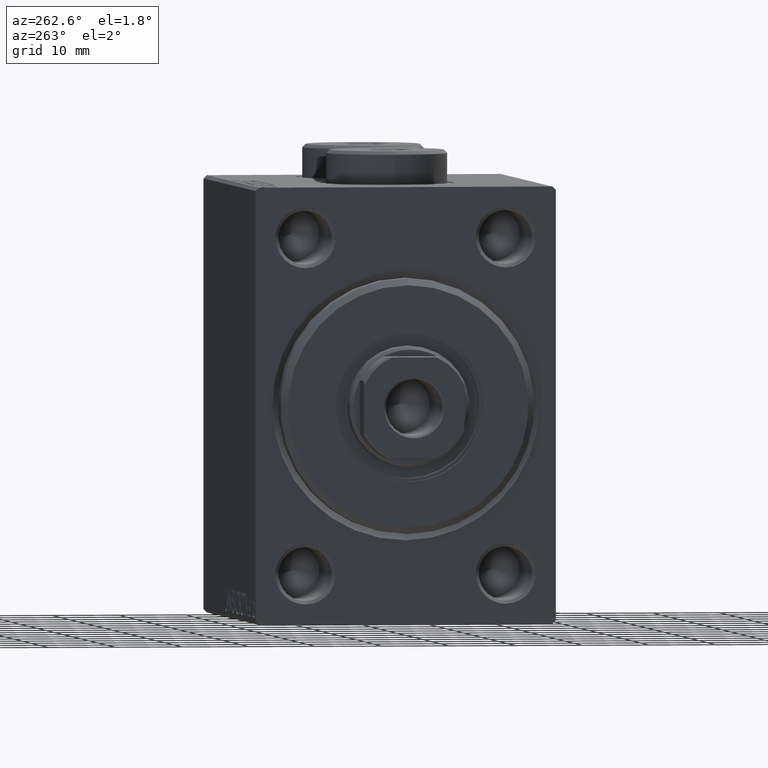
[diagram: clean part render]
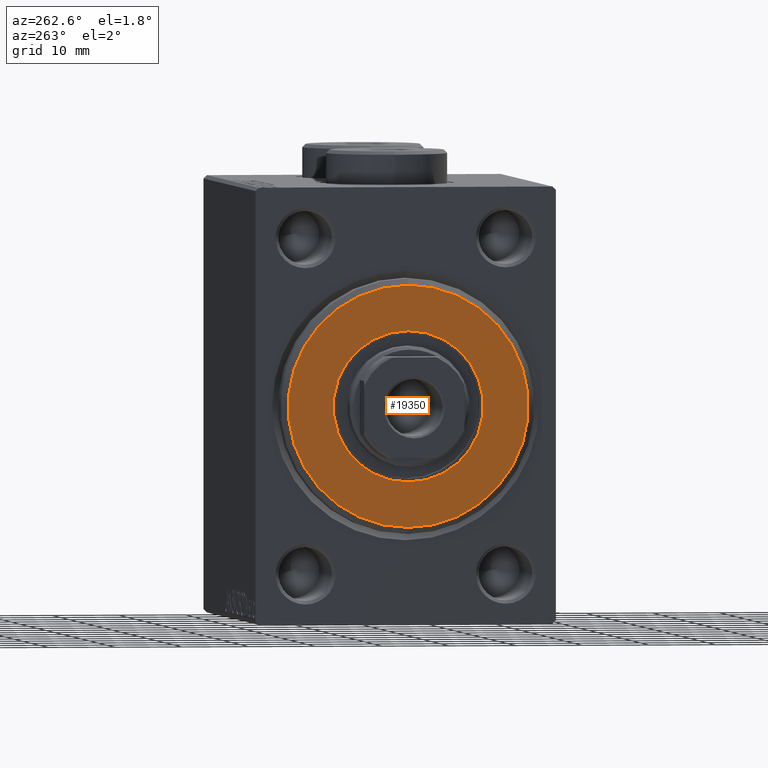
[diagram: same view with one face highlighted and labeled with its STEP entity id]
A machine part, auxiliary view. The second image highlights one B-rep face of the part: STEP entity #19350.
In plain terms, the highlighted planar face has unit normal (-1, 0, 0).
Its self-contained STEP definition (entity closure, byte-faithful):
#73 = AXIS2_PLACEMENT_3D ( 'NONE', #294, #39014, #17542 ) ;
#294 = CARTESIAN_POINT ( 'NONE',  ( 3.000000000000000000, 0.000000000000000000, 0.000000000000000000 ) ) ;
#704 = CARTESIAN_POINT ( 'NONE',  ( 3.000000000000000000, 2.265596578422602607E-15, -17.99999999999998934 ) ) ;
#973 = ORIENTED_EDGE ( 'NONE', *, *, #15301, .T. ) ;
#1362 = DIRECTION ( 'NONE',  ( 1.000000000000000000, -0.000000000000000000, 0.000000000000000000 ) ) ;
#4525 = ORIENTED_EDGE ( 'NONE', *, *, #39647, .F. ) ;
#6016 = AXIS2_PLACEMENT_3D ( 'NONE', #25990, #1362, #26900 ) ;
#6398 = DIRECTION ( 'NONE',  ( 1.000000000000000000, -0.000000000000000000, 0.000000000000000000 ) ) ;
#6550 = EDGE_CURVE ( 'NONE', #40892, #12148, #23312, .T. ) ;
#6848 = CARTESIAN_POINT ( 'NONE',  ( 3.000000000000000000, 0.000000000000000000, 0.000000000000000000 ) ) ;
#6966 = FACE_OUTER_BOUND ( 'NONE', #36984, .T. ) ;
#9868 = DIRECTION ( 'NONE',  ( 0.000000000000000000, 0.000000000000000000, -1.000000000000000000 ) ) ;
#11126 = CIRCLE ( 'NONE', #31005, 11.25000000000000178 ) ;
#12148 = VERTEX_POINT ( 'NONE', #29027 ) ;
#13314 = DIRECTION ( 'NONE',  ( 1.000000000000000000, 0.000000000000000000, 0.000000000000000000 ) ) ;
#14467 = CARTESIAN_POINT ( 'NONE',  ( 3.000000000000000000, 0.000000000000000000, 0.000000000000000000 ) ) ;
#15301 = EDGE_CURVE ( 'NONE', #37596, #43769, #30965, .T. ) ;
#17542 = DIRECTION ( 'NONE',  ( 0.000000000000000000, 0.000000000000000000, -1.000000000000000000 ) ) ;
#19350 = ADVANCED_FACE ( 'NONE', ( #6966, #39464 ), #35776, .T. ) ;
#20448 = DIRECTION ( 'NONE',  ( 0.000000000000000000, 0.000000000000000000, -1.000000000000000000 ) ) ;
#20842 = CARTESIAN_POINT ( 'NONE',  ( 3.000000000000000000, 0.000000000000000000, 17.99999999999998934 ) ) ;
#21796 = EDGE_CURVE ( 'NONE', #43769, #37596, #24430, .T. ) ;
#23312 = CIRCLE ( 'NONE', #38819, 11.25000000000000178 ) ;
#24375 = DIRECTION ( 'NONE',  ( 1.000000000000000000, 0.000000000000000000, 0.000000000000000000 ) ) ;
#24430 = CIRCLE ( 'NONE', #6016, 17.99999999999998934 ) ;
#25990 = CARTESIAN_POINT ( 'NONE',  ( 3.000000000000000000, 0.000000000000000000, 0.000000000000000000 ) ) ;
#26900 = DIRECTION ( 'NONE',  ( 0.000000000000000000, 0.000000000000000000, -1.000000000000000000 ) ) ;
#29027 = CARTESIAN_POINT ( 'NONE',  ( 3.000000000000000000, 0.000000000000000000, -11.25000000000000178 ) ) ;
#30965 = CIRCLE ( 'NONE', #32448, 17.99999999999998934 ) ;
#31005 = AXIS2_PLACEMENT_3D ( 'NONE', #14467, #24375, #44751 ) ;
#31836 = ORIENTED_EDGE ( 'NONE', *, *, #6550, .F. ) ;
#32448 = AXIS2_PLACEMENT_3D ( 'NONE', #41455, #6398, #20448 ) ;
#33760 = ORIENTED_EDGE ( 'NONE', *, *, #21796, .T. ) ;
#34814 = EDGE_LOOP ( 'NONE', ( #4525, #31836 ) ) ;
#35776 = PLANE ( 'NONE',  #73 ) ;
#36984 = EDGE_LOOP ( 'NONE', ( #973, #33760 ) ) ;
#37596 = VERTEX_POINT ( 'NONE', #20842 ) ;
#37706 = CARTESIAN_POINT ( 'NONE',  ( 3.000000000000000000, 1.377727649040772586E-15, 11.25000000000000178 ) ) ;
#38819 = AXIS2_PLACEMENT_3D ( 'NONE', #6848, #13314, #9868 ) ;
#39014 = DIRECTION ( 'NONE',  ( 1.000000000000000000, -0.000000000000000000, 0.000000000000000000 ) ) ;
#39464 = FACE_BOUND ( 'NONE', #34814, .T. ) ;
#39647 = EDGE_CURVE ( 'NONE', #12148, #40892, #11126, .T. ) ;
#40892 = VERTEX_POINT ( 'NONE', #37706 ) ;
#41455 = CARTESIAN_POINT ( 'NONE',  ( 3.000000000000000000, 0.000000000000000000, 0.000000000000000000 ) ) ;
#43769 = VERTEX_POINT ( 'NONE', #704 ) ;
#44751 = DIRECTION ( 'NONE',  ( 0.000000000000000000, 0.000000000000000000, -1.000000000000000000 ) ) ;